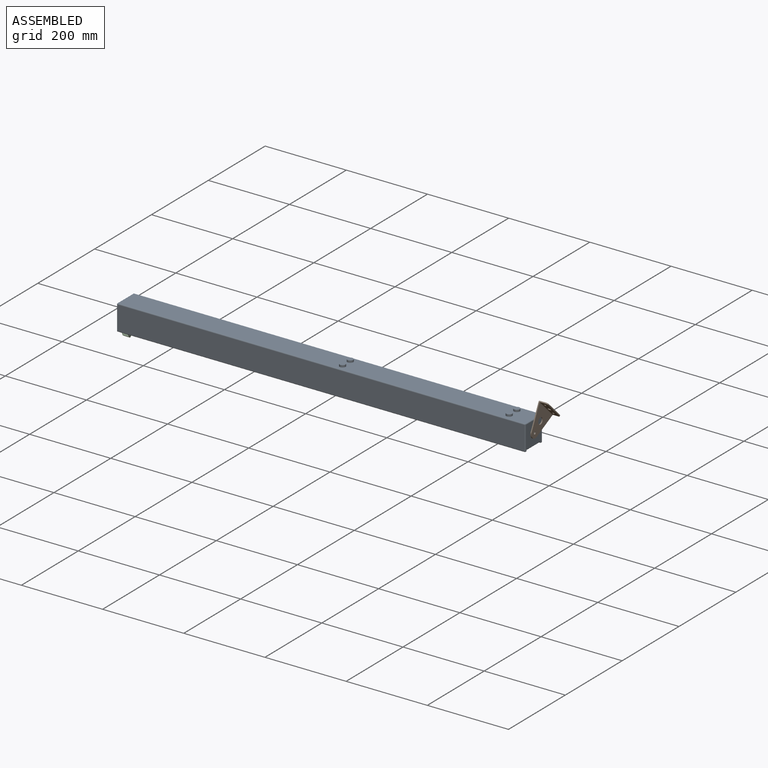
[diagram: assembled view]
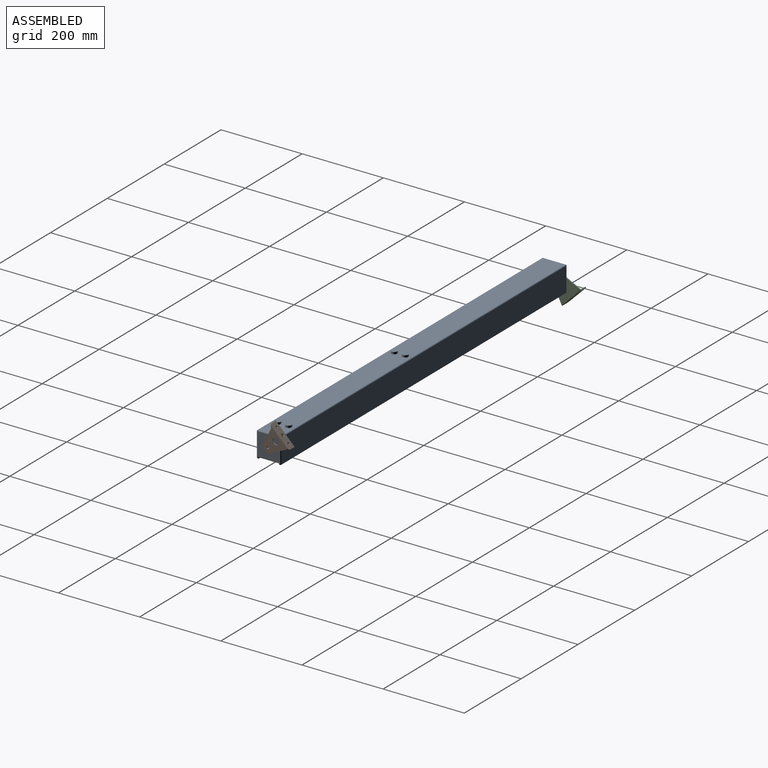
[diagram: assembled view, second angle]
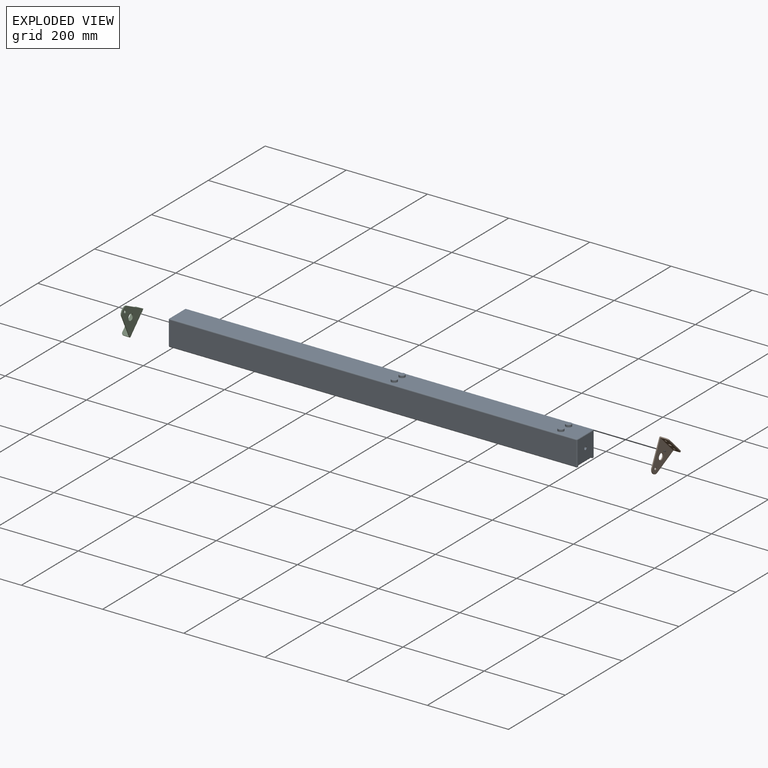
[diagram: exploded view]
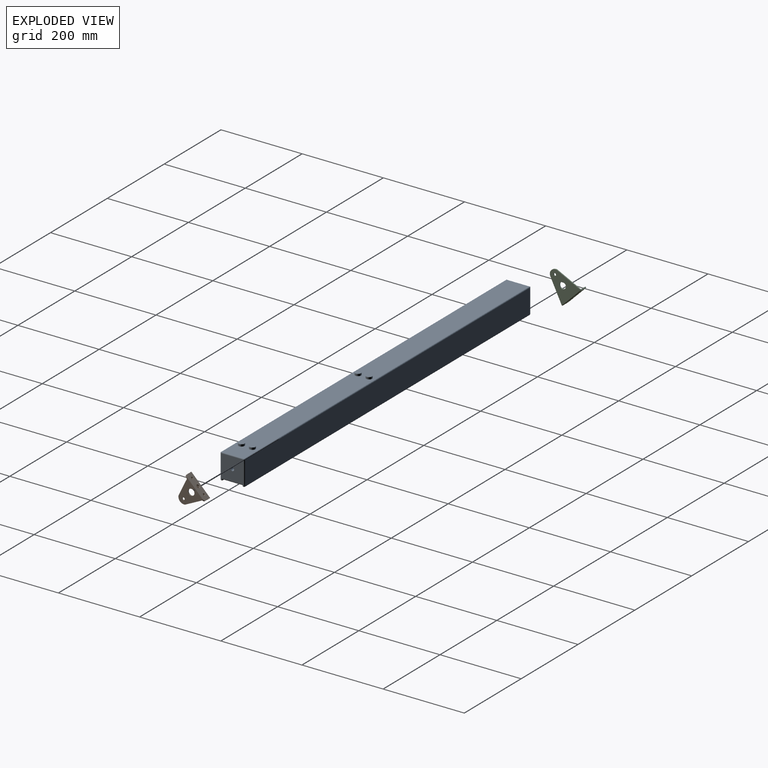
[diagram: exploded view, second angle]
ASSEMBLY  parts=3 mates=4
PART A: 76 faces, bbox 1006.9x59.9x68.3 mm
  f0: plane 1002.28x1.27mm, normal (0,0,1), area 1272.9mm2, adj f11,f13,f20,f26
  f1: plane 1002.28x58.67mm, normal (0,-1,0), area 58808mm2, adj f13,f22,f23,f24
  f2: plane 58.67x55.37mm, normal (1,0,0), area 3031.1mm2, adj f17,f24,f26,f28,f29,f32,f34,f36
  f3: plane 1002.28x58.67mm, normal (0,1,0), area 58808mm2, adj f12,f30,f32,f37
  f4: plane 58.67x55.37mm, normal (-1,0,0), area 3031.1mm2, adj f15,f18,f20,f22,f31,f37,f39,f41
  f5: plane 1002.28x1.27mm, normal (0,0,1), area 1272.9mm2, adj f10,f12,f34,f39
  f6: plane 1002.28x55.37mm, normal (0,0,-1), area 54840mm2, adj f23,f29,f30,f31,f68,f70,f72,f74
  f7: plane 1002.28x0.76mm, normal (0,-1,0), area 763.7mm2, adj f9,f10,f36,f41
  f8: plane 1002.28x0.76mm, normal (0,1,0), area 763.7mm2, adj f9,f11,f18,f28
  f9: plane 1002.28x48.26mm, normal (0,0,1), area 38869.5mm2, adj f7,f8,f42,f43,f45,f47,f49,f51
  f10: cylinder r=2.29mm len=1002.28mm, axis (1,0,0), area 3599mm2, adj f5,f7,f35,f40
  f11: cylinder r=2.29mm len=1002.28mm, axis (-1,0,0), area 3599mm2, adj f0,f8,f19,f27
  f12: cylinder r=2.29mm len=1002.28mm, axis (1,0,0), area 3599mm2, adj f3,f5,f33,f38
  f13: cylinder r=2.29mm len=1002.28mm, axis (-1,0,0), area 3599mm2, adj f0,f1,f21,f25
  f14: cone r=0mm half-angle=59deg, axis (-1,0,0), area 66.2mm2, adj f15
  f15: cylinder r=4.25mm len=17.2mm, axis (-1,0,0), area 459.3mm2, adj f4,f14
  f16: cone r=0mm half-angle=59deg, axis (1,0,0), area 66.2mm2, adj f17
  f17: cylinder r=4.25mm len=17.2mm, axis (1,0,0), area 459.3mm2, adj f2,f16
  f18: cylinder r=2.29mm len=3.05mm, axis (0,0,-1), area 5.7mm2, adj f4,f8,f19,f42
  f19: sphere r=2.29mm, area 8.2mm2, adj f11,f18,f20
  f20: cylinder r=2.29mm len=2.29mm, axis (0,1,0), area 4.6mm2, adj f0,f4,f19,f21
  f21: sphere r=2.29mm, area 8.2mm2, adj f13,f20,f22
  f22: cylinder r=2.29mm len=60.29mm, axis (0,0,-1), area 213.8mm2, adj f1,f4,f21,f23,f31
  f23: cylinder r=2.29mm len=1005.52mm, axis (1,0,0), area 3605.2mm2, adj f1,f6,f22,f24,f29,f31
  f24: cylinder r=2.29mm len=60.29mm, axis (0,0,1), area 213.8mm2, adj f1,f2,f23,f25,f29
  f25: sphere r=2.29mm, area 8.2mm2, adj f13,f24,f26
  f26: cylinder r=2.29mm len=2.29mm, axis (0,-1,0), area 4.6mm2, adj f0,f2,f25,f27
  f27: sphere r=2.29mm, area 8.2mm2, adj f11,f26,f28
  f28: cylinder r=2.29mm len=3.05mm, axis (0,0,1), area 5.7mm2, adj f2,f8,f27,f43
  f29: cylinder r=2.29mm len=58.61mm, axis (0,1,0), area 205mm2, adj f2,f6,f23,f24,f30,f32
  f30: cylinder r=2.29mm len=1005.52mm, axis (-1,0,0), area 3605.2mm2, adj f3,f6,f29,f31,f32,f37
  f31: cylinder r=2.29mm len=58.61mm, axis (0,-1,0), area 205mm2, adj f4,f6,f22,f23,f30,f37
  f32: cylinder r=2.29mm len=60.29mm, axis (0,0,-1), area 213.8mm2, adj f2,f3,f29,f30,f33
  f33: sphere r=2.29mm, area 8.2mm2, adj f12,f32,f34
  f34: cylinder r=2.29mm len=2.29mm, axis (0,-1,0), area 4.6mm2, adj f2,f5,f33,f35
  f35: sphere r=2.29mm, area 8.2mm2, adj f10,f34,f36
  f36: cylinder r=2.29mm len=3.05mm, axis (0,0,-1), area 5.7mm2, adj f2,f7,f35,f43
  f37: cylinder r=2.29mm len=60.29mm, axis (0,0,1), area 213.8mm2, adj f3,f4,f30,f31,f38
  f38: sphere r=2.29mm, area 8.2mm2, adj f12,f37,f39
  f39: cylinder r=2.29mm len=2.29mm, axis (0,1,0), area 4.6mm2, adj f4,f5,f38,f40
  f40: sphere r=2.29mm, area 8.2mm2, adj f10,f39,f41
  f41: cylinder r=2.29mm len=3.05mm, axis (0,0,1), area 5.7mm2, adj f4,f7,f40,f42
  f42: cylinder r=2.29mm len=52.83mm, axis (0,1,0), area 179.3mm2, adj f4,f9,f18,f41
  f43: cylinder r=2.29mm len=52.83mm, axis (0,-1,0), area 179.3mm2, adj f2,f9,f28,f36
  f44: cone r=0mm half-angle=59deg, axis (0,0,1), area 923.7mm2, adj f45
  f45: cylinder r=15.88mm len=31.75mm, axis (0,0,1), area 633.4mm2, adj f9,f44
  f46: cone r=0mm half-angle=59deg, axis (0,0,1), area 923.7mm2, adj f47
  f47: cylinder r=15.88mm len=31.75mm, axis (0,0,1), area 633.4mm2, adj f9,f46
  f48: cone r=0mm half-angle=59deg, axis (0,0,1), area 923.7mm2, adj f49
  f49: cylinder r=15.88mm len=31.75mm, axis (0,0,1), area 633.4mm2, adj f9,f48
  f50: cone r=0mm half-angle=59deg, axis (0,0,1), area 923.7mm2, adj f51
  f51: cylinder r=15.88mm len=31.75mm, axis (0,0,1), area 633.4mm2, adj f9,f50
  f52: cone r=0mm half-angle=59deg, axis (0,0,1), area 923.7mm2, adj f53
  f53: cylinder r=15.88mm len=31.75mm, axis (0,0,1), area 633.4mm2, adj f9,f52
  f54: cone r=0mm half-angle=59deg, axis (0,0,1), area 923.7mm2, adj f55
  f55: cylinder r=15.88mm len=31.75mm, axis (0,0,1), area 633.4mm2, adj f9,f54
  f56: cone r=0mm half-angle=59deg, axis (0,0,1), area 923.7mm2, adj f57
  f57: cylinder r=15.88mm len=31.75mm, axis (0,0,1), area 633.4mm2, adj f9,f56
  f58: cone r=0mm half-angle=59deg, axis (0,0,1), area 923.7mm2, adj f59
  f59: cylinder r=15.88mm len=31.75mm, axis (0,0,1), area 633.4mm2, adj f9,f58
  f60: cone r=0mm half-angle=59deg, axis (0,0,1), area 923.7mm2, adj f61
  f61: cylinder r=15.88mm len=31.75mm, axis (0,0,1), area 633.4mm2, adj f9,f60
  f62: cone r=0mm half-angle=59deg, axis (0,0,1), area 923.7mm2, adj f63
  f63: cylinder r=15.88mm len=31.75mm, axis (0,0,1), area 633.4mm2, adj f9,f62
  f64: cone r=0mm half-angle=59deg, axis (0,0,1), area 923.7mm2, adj f65
  f65: cylinder r=15.88mm len=31.75mm, axis (0,0,1), area 633.4mm2, adj f9,f64
  f66: cone r=0mm half-angle=59deg, axis (0,0,1), area 923.7mm2, adj f67
  f67: cylinder r=15.88mm len=31.75mm, axis (0,0,1), area 633.4mm2, adj f9,f66
  f68: cylinder r=7.24mm len=14.48mm, axis (0,0,1), area 231.1mm2, adj f6,f69
  f69: plane 14.48x14.48mm, normal (0,0,-1), area 164.6mm2, adj f68
  f70: cylinder r=7.24mm len=14.48mm, axis (0,0,1), area 231.1mm2, adj f6,f71
  f71: plane 14.48x14.48mm, normal (0,0,-1), area 164.6mm2, adj f70
  f72: cylinder r=7.24mm len=14.48mm, axis (0,0,1), area 231.1mm2, adj f6,f73
  f73: plane 14.48x14.48mm, normal (0,0,-1), area 164.6mm2, adj f72
  f74: cylinder r=7.24mm len=14.48mm, axis (0,0,1), area 231.1mm2, adj f6,f75
  f75: plane 14.48x14.48mm, normal (0,0,-1), area 164.6mm2, adj f74
PART B: 20 faces, bbox 65.3x21.6x70.4 mm
  f0: cylinder r=13.69mm len=23.11mm, axis (0,1,0), area 69.9mm2, adj f1,f3,f4,f5
  f1: plane 61.47x21.08mm, normal (-0.95,0,0.32), area 165.4mm2, adj f0,f2,f4,f5,f11
  f2: plane 3.81x0.06mm, normal (0,0,-1), area 0.1mm2, adj f1,f6,f11
  f3: plane 61.47x21.08mm, normal (0.95,0,0.32), area 165.4mm2, adj f0,f4,f5,f7,f11
  f4: plane 66.55x64.41mm, normal (0,-1,0), area 2511.4mm2, adj f0,f1,f3,f11,f18,f19
  f5: plane 69.09x65.28mm, normal (0,1,0), area 2676.6mm2, adj f0,f1,f3,f6,f7,f12,f18,f19
  f6: plane 16.6x2.55mm, normal (-1,-0.02,0), area 41.8mm2, adj f2,f5,f9,f10,f12,f14
  f7: plane 16.51x2.54mm, normal (1,0,0), area 41.6mm2, adj f3,f5,f9,f10,f12,f13
  f8: plane 54.86x2.54mm, normal (0,-1,0), area 139.3mm2, adj f9,f10,f13,f14
  f9: plane 65.26x20.32mm, normal (0,0,-1), area 1207.6mm2, adj f6,f7,f8,f12,f13,f14,f15,f16
  f10: plane 65.22x17.78mm, normal (0,0,1), area 1041.9mm2, adj f6,f7,f8,f11,f13,f14,f15,f16
  f11: cylinder r=1.27mm len=65.28mm, axis (1,0,0), area 129.6mm2, adj f1,f2,f3,f4,f10
  f12: cylinder r=1.27mm len=65.28mm, axis (-1,0,0), area 130.2mm2, adj f5,f6,f7,f9
  f13: cylinder r=5.08mm len=5.08mm, axis (0,0,-1), area 20.3mm2, adj f7,f8,f9,f10
  f14: cylinder r=5.08mm len=5.08mm, axis (0,0,1), area 20.1mm2, adj f6,f8,f9,f10
  f15: cylinder r=2.79mm len=5.59mm, axis (0,0,1), area 44.6mm2, adj f9,f10
  f16: cylinder r=2.79mm len=5.59mm, axis (0,0,1), area 44.6mm2, adj f9,f10
  f17: cylinder r=4.19mm len=8.38mm, axis (0,0,1), area 66.9mm2, adj f9,f10
  f18: cylinder r=3.17mm len=6.35mm, axis (0,1,0), area 50.7mm2, adj f4,f5
  f19: cylinder r=7.87mm len=15.75mm, axis (0,-1,0), area 125.7mm2, adj f4,f5
PART C: same geometry as B
PLACE A rot(axis=(-1,0,0),180deg) t=(128.75,77.86,-87.81)mm
PLACE B rot(axis=(0.68,-0.68,0.28),148.6deg) t=(128.75,110.75,-101.59)mm
PLACE C rot(axis=(0.36,0.36,-0.86),98.4deg) t=(-878.1,110.75,-134.99)mm
MATE cylindrical B.f18 <-> A.f14  axis (-1,0,0) through (128.75,47.89,-118.29)mm
MATE planar B.f5 <-> A.f2  axis (-1,0,0) through (128.75,88.57,-77.61)mm
MATE planar C.f5 <-> A.f4  axis (1,0,0) through (-878.1,69.33,-139.73)mm
MATE cylindrical C.f18 <-> A.f14  axis (1,0,0) through (-880.64,47.89,-118.29)mm
